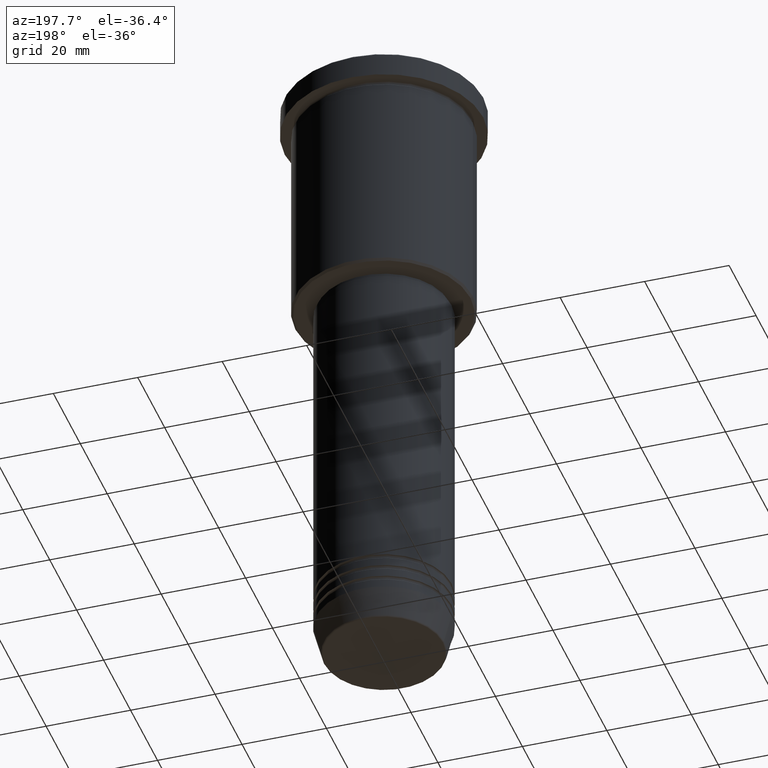
[diagram: clean part render]
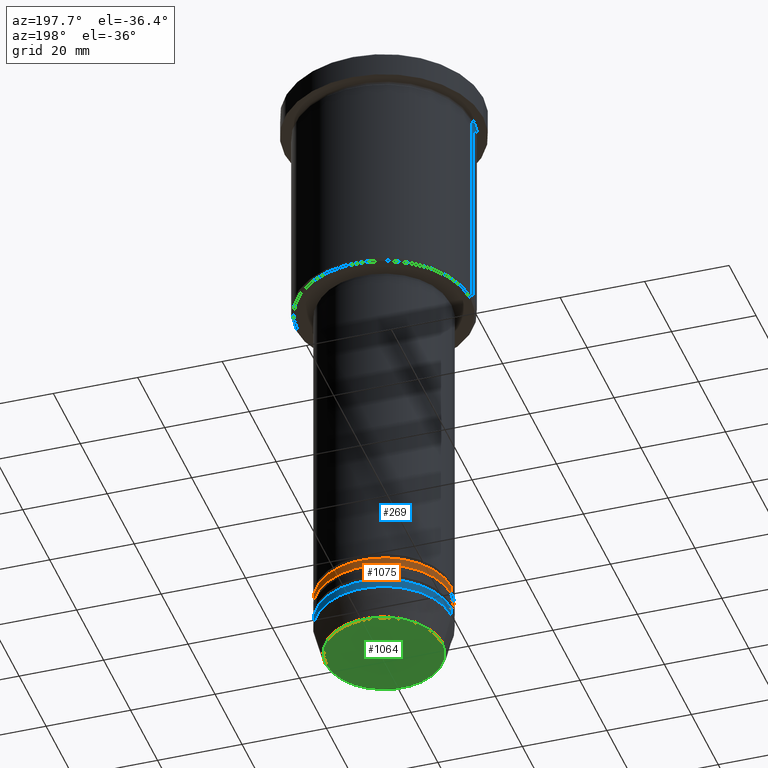
[diagram: same view with three faces highlighted in distinct colors, each labeled with its STEP entity id]
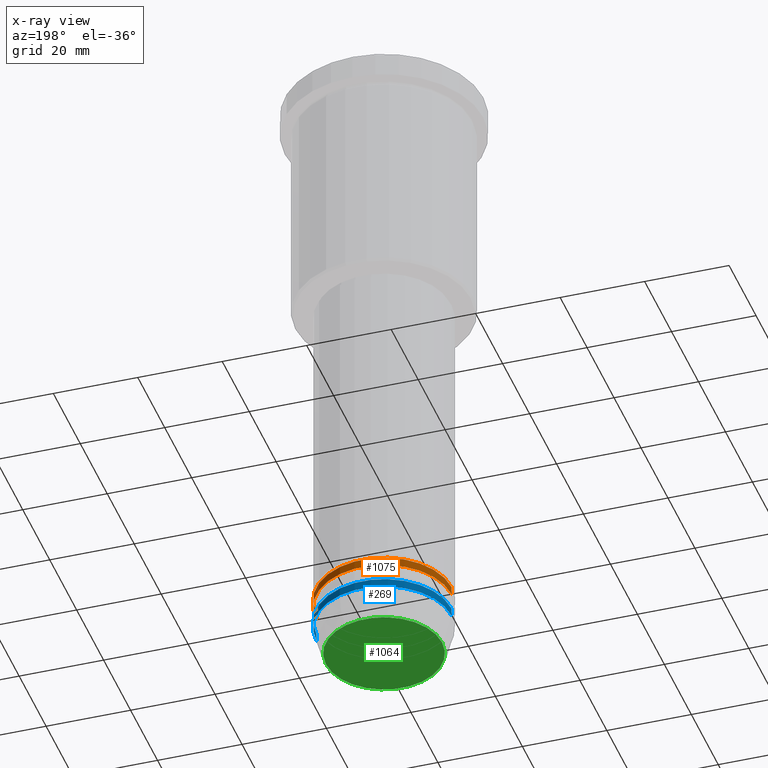
[diagram: x-ray of the same camera — body ghosted, the three highlighted faces saturated]
A machine part, auxiliary view with three faces highlighted in distinct colors.
The next image is the same camera in x-ray (body ghosted, the three faces saturated) — at least one of them is partly hidden behind the body in this view.
Their STEP definitions:

[orange] entity #1075 — the highlighted cylindrical surface (partial cylindrical patch) has radius 16 mm, axis along (-0, -0, 1).
#49 = AXIS2_PLACEMENT_3D ( 'NONE', #991, #169, #161 ) ;
#57 = DIRECTION ( 'NONE',  ( -0.000000000000000000, -0.000000000000000000, 1.000000000000000000 ) ) ;
#79 = CIRCLE ( 'NONE', #294, 16.00000000000000000 ) ;
#133 = ORIENTED_EDGE ( 'NONE', *, *, #238, .F. ) ;
#161 = DIRECTION ( 'NONE',  ( 1.000000000000000000, 0.000000000000000000, 0.000000000000000000 ) ) ;
#169 = DIRECTION ( 'NONE',  ( -0.000000000000000000, -0.000000000000000000, 1.000000000000000000 ) ) ;
#193 = EDGE_CURVE ( 'NONE', #1045, #1108, #79, .T. ) ;
#195 = DIRECTION ( 'NONE',  ( -0.000000000000000000, -0.000000000000000000, 1.000000000000000000 ) ) ;
#234 = EDGE_LOOP ( 'NONE', ( #842, #1153, #133, #307 ) ) ;
#238 = EDGE_CURVE ( 'NONE', #877, #862, #390, .T. ) ;
#254 = LINE ( 'NONE', #618, #856 ) ;
#294 = AXIS2_PLACEMENT_3D ( 'NONE', #1133, #863, #428 ) ;
#307 = ORIENTED_EDGE ( 'NONE', *, *, #776, .F. ) ;
#377 = CARTESIAN_POINT ( 'NONE',  ( -16.00000000000000000, 1.959434878635765131E-15, -137.9999999999999716 ) ) ;
#390 = CIRCLE ( 'NONE', #49, 16.00000000000000000 ) ;
#428 = DIRECTION ( 'NONE',  ( 1.000000000000000000, 0.000000000000000000, 0.000000000000000000 ) ) ;
#461 = CARTESIAN_POINT ( 'NONE',  ( 0.000000000000000000, 0.000000000000000000, 0.000000000000000000 ) ) ;
#466 = CYLINDRICAL_SURFACE ( 'NONE', #972, 16.00000000000000000 ) ;
#554 = CARTESIAN_POINT ( 'NONE',  ( 16.00000000000000000, 0.000000000000000000, -135.9999999999999716 ) ) ;
#564 = DIRECTION ( 'NONE',  ( 1.000000000000000000, 0.000000000000000000, 0.000000000000000000 ) ) ;
#618 = CARTESIAN_POINT ( 'NONE',  ( 16.00000000000000000, 0.000000000000000000, 0.000000000000000000 ) ) ;
#621 = DIRECTION ( 'NONE',  ( -0.000000000000000000, -0.000000000000000000, 1.000000000000000000 ) ) ;
#673 = CARTESIAN_POINT ( 'NONE',  ( 16.00000000000000000, 0.000000000000000000, -137.9999999999999716 ) ) ;
#705 = VECTOR ( 'NONE', #57, 1000.000000000000000 ) ;
#735 = CARTESIAN_POINT ( 'NONE',  ( -16.00000000000000000, 1.959434878635765131E-15, -135.9999999999999716 ) ) ;
#768 = EDGE_CURVE ( 'NONE', #1108, #862, #1076, .T. ) ;
#776 = EDGE_CURVE ( 'NONE', #1045, #877, #254, .T. ) ;
#842 = ORIENTED_EDGE ( 'NONE', *, *, #193, .T. ) ;
#856 = VECTOR ( 'NONE', #621, 1000.000000000000000 ) ;
#862 = VERTEX_POINT ( 'NONE', #735 ) ;
#863 = DIRECTION ( 'NONE',  ( -0.000000000000000000, -0.000000000000000000, 1.000000000000000000 ) ) ;
#877 = VERTEX_POINT ( 'NONE', #554 ) ;
#880 = CARTESIAN_POINT ( 'NONE',  ( -16.00000000000000000, 1.959434878635765131E-15, 0.000000000000000000 ) ) ;
#972 = AXIS2_PLACEMENT_3D ( 'NONE', #461, #195, #564 ) ;
#991 = CARTESIAN_POINT ( 'NONE',  ( 0.000000000000000000, 0.000000000000000000, -135.9999999999999716 ) ) ;
#1045 = VERTEX_POINT ( 'NONE', #673 ) ;
#1075 = ADVANCED_FACE ( 'NONE', ( #1109 ), #466, .T. ) ;
#1076 = LINE ( 'NONE', #880, #705 ) ;
#1108 = VERTEX_POINT ( 'NONE', #377 ) ;
#1109 = FACE_OUTER_BOUND ( 'NONE', #234, .T. ) ;
#1133 = CARTESIAN_POINT ( 'NONE',  ( 0.000000000000000000, 0.000000000000000000, -137.9999999999999716 ) ) ;
#1153 = ORIENTED_EDGE ( 'NONE', *, *, #768, .T. ) ;

[blue] entity #269 — the highlighted cylindrical surface (partial cylindrical patch) has radius 16 mm, axis along (-0, -0, 1).
#10 = DIRECTION ( 'NONE',  ( -0.000000000000000000, -0.000000000000000000, 1.000000000000000000 ) ) ;
#74 = CARTESIAN_POINT ( 'NONE',  ( 0.000000000000000000, 0.000000000000000000, -142.0000000000000284 ) ) ;
#89 = EDGE_CURVE ( 'NONE', #412, #485, #985, .T. ) ;
#95 = CARTESIAN_POINT ( 'NONE',  ( -16.00000000000000000, 1.959434878635765131E-15, 0.000000000000000000 ) ) ;
#156 = CARTESIAN_POINT ( 'NONE',  ( 0.000000000000000000, 0.000000000000000000, 0.000000000000000000 ) ) ;
#186 = CARTESIAN_POINT ( 'NONE',  ( 16.00000000000000000, 0.000000000000000000, -144.0000000000000284 ) ) ;
#199 = LINE ( 'NONE', #480, #836 ) ;
#208 = CARTESIAN_POINT ( 'NONE',  ( -16.00000000000000000, 1.959434878635765131E-15, -144.0000000000000284 ) ) ;
#223 = EDGE_CURVE ( 'NONE', #690, #679, #1083, .T. ) ;
#233 = DIRECTION ( 'NONE',  ( 1.000000000000000000, 0.000000000000000000, 0.000000000000000000 ) ) ;
#241 = CARTESIAN_POINT ( 'NONE',  ( 0.000000000000000000, 0.000000000000000000, -144.0000000000000284 ) ) ;
#247 = EDGE_LOOP ( 'NONE', ( #936, #420, #335, #1112 ) ) ;
#269 = ADVANCED_FACE ( 'NONE', ( #977 ), #1088, .T. ) ;
#335 = ORIENTED_EDGE ( 'NONE', *, *, #223, .F. ) ;
#412 = VERTEX_POINT ( 'NONE', #186 ) ;
#420 = ORIENTED_EDGE ( 'NONE', *, *, #885, .T. ) ;
#430 = CARTESIAN_POINT ( 'NONE',  ( -16.00000000000000000, 1.959434878635765131E-15, -142.0000000000000284 ) ) ;
#433 = AXIS2_PLACEMENT_3D ( 'NONE', #74, #615, #624 ) ;
#480 = CARTESIAN_POINT ( 'NONE',  ( 16.00000000000000000, 0.000000000000000000, 0.000000000000000000 ) ) ;
#485 = VERTEX_POINT ( 'NONE', #208 ) ;
#539 = DIRECTION ( 'NONE',  ( -0.000000000000000000, -0.000000000000000000, 1.000000000000000000 ) ) ;
#615 = DIRECTION ( 'NONE',  ( -0.000000000000000000, -0.000000000000000000, 1.000000000000000000 ) ) ;
#624 = DIRECTION ( 'NONE',  ( 1.000000000000000000, 0.000000000000000000, 0.000000000000000000 ) ) ;
#664 = VECTOR ( 'NONE', #1102, 1000.000000000000000 ) ;
#679 = VERTEX_POINT ( 'NONE', #430 ) ;
#690 = VERTEX_POINT ( 'NONE', #797 ) ;
#718 = DIRECTION ( 'NONE',  ( 1.000000000000000000, 0.000000000000000000, 0.000000000000000000 ) ) ;
#797 = CARTESIAN_POINT ( 'NONE',  ( 16.00000000000000000, 0.000000000000000000, -142.0000000000000284 ) ) ;
#836 = VECTOR ( 'NONE', #10, 1000.000000000000000 ) ;
#885 = EDGE_CURVE ( 'NONE', #485, #679, #1050, .T. ) ;
#909 = AXIS2_PLACEMENT_3D ( 'NONE', #156, #539, #718 ) ;
#936 = ORIENTED_EDGE ( 'NONE', *, *, #89, .T. ) ;
#948 = DIRECTION ( 'NONE',  ( -0.000000000000000000, -0.000000000000000000, 1.000000000000000000 ) ) ;
#967 = AXIS2_PLACEMENT_3D ( 'NONE', #241, #948, #233 ) ;
#977 = FACE_OUTER_BOUND ( 'NONE', #247, .T. ) ;
#985 = CIRCLE ( 'NONE', #967, 16.00000000000000000 ) ;
#1050 = LINE ( 'NONE', #95, #664 ) ;
#1054 = EDGE_CURVE ( 'NONE', #412, #690, #199, .T. ) ;
#1083 = CIRCLE ( 'NONE', #433, 16.00000000000000000 ) ;
#1088 = CYLINDRICAL_SURFACE ( 'NONE', #909, 16.00000000000000000 ) ;
#1102 = DIRECTION ( 'NONE',  ( -0.000000000000000000, -0.000000000000000000, 1.000000000000000000 ) ) ;
#1112 = ORIENTED_EDGE ( 'NONE', *, *, #1054, .F. ) ;

[green] entity #1064 — the highlighted planar face has unit normal (0, -0, 1).
#31 = DIRECTION ( 'NONE',  ( 0.000000000000000000, -0.000000000000000000, 1.000000000000000000 ) ) ;
#68 = AXIS2_PLACEMENT_3D ( 'NONE', #473, #31, #386 ) ;
#78 = AXIS2_PLACEMENT_3D ( 'NONE', #417, #780, #500 ) ;
#98 = FACE_OUTER_BOUND ( 'NONE', #697, .T. ) ;
#119 = EDGE_CURVE ( 'NONE', #403, #581, #179, .T. ) ;
#154 = ORIENTED_EDGE ( 'NONE', *, *, #905, .T. ) ;
#179 = CIRCLE ( 'NONE', #78, 13.74069215899266005 ) ;
#292 = PLANE ( 'NONE',  #68 ) ;
#303 = CARTESIAN_POINT ( 'NONE',  ( 0.000000000000000000, 0.000000000000000000, -151.0000000000000284 ) ) ;
#386 = DIRECTION ( 'NONE',  ( 1.000000000000000000, 0.000000000000000000, 0.000000000000000000 ) ) ;
#403 = VERTEX_POINT ( 'NONE', #1117 ) ;
#417 = CARTESIAN_POINT ( 'NONE',  ( 0.000000000000000000, 0.000000000000000000, -151.0000000000000284 ) ) ;
#473 = CARTESIAN_POINT ( 'NONE',  ( 0.000000000000000000, 0.000000000000000000, -151.0000000000000284 ) ) ;
#500 = DIRECTION ( 'NONE',  ( 1.000000000000000000, 0.000000000000000000, 0.000000000000000000 ) ) ;
#581 = VERTEX_POINT ( 'NONE', #1138 ) ;
#583 = DIRECTION ( 'NONE',  ( 0.000000000000000000, 0.000000000000000000, -1.000000000000000000 ) ) ;
#628 = AXIS2_PLACEMENT_3D ( 'NONE', #303, #583, #951 ) ;
#643 = ORIENTED_EDGE ( 'NONE', *, *, #119, .T. ) ;
#697 = EDGE_LOOP ( 'NONE', ( #643, #154 ) ) ;
#780 = DIRECTION ( 'NONE',  ( 0.000000000000000000, 0.000000000000000000, -1.000000000000000000 ) ) ;
#816 = CIRCLE ( 'NONE', #628, 13.74069215899266005 ) ;
#905 = EDGE_CURVE ( 'NONE', #581, #403, #816, .T. ) ;
#951 = DIRECTION ( 'NONE',  ( 1.000000000000000000, 0.000000000000000000, 0.000000000000000000 ) ) ;
#1064 = ADVANCED_FACE ( 'NONE', ( #98 ), #292, .F. ) ;
#1117 = CARTESIAN_POINT ( 'NONE',  ( 13.74069215899266005, 0.000000000000000000, -151.0000000000000284 ) ) ;
#1138 = CARTESIAN_POINT ( 'NONE',  ( -13.74069215899266005, 1.712322416342416380E-15, -151.0000000000000284 ) ) ;